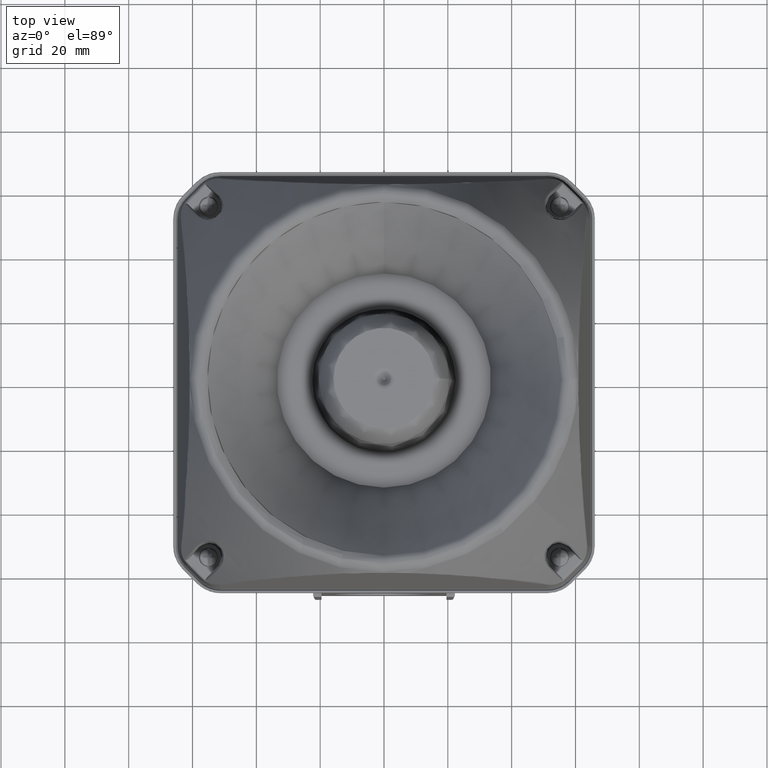
[diagram: clean part render]
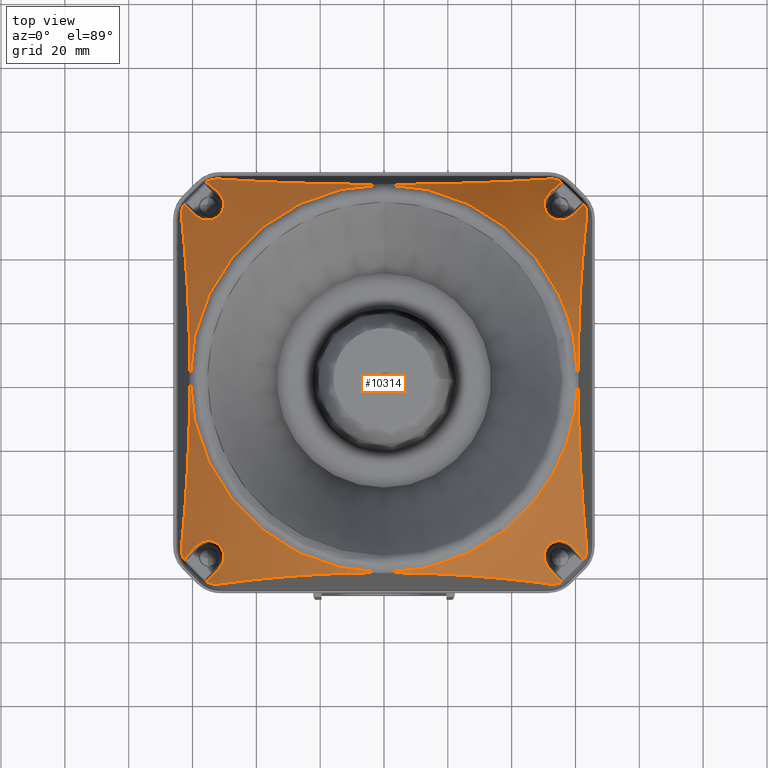
[diagram: same view with one face highlighted and labeled with its STEP entity id]
A machine part, top view. The second image highlights one B-rep face of the part: STEP entity #10314.
In plain terms, the highlighted face is a freeform B-spline surface patch.
Its self-contained STEP definition (entity closure, byte-faithful):
#986=(
BOUNDED_SURFACE()
B_SPLINE_SURFACE(3,3,((#53728,#53729,#53730,#53731,#53732,#53733,#53734),
(#53735,#53736,#53737,#53738,#53739,#53740,#53741),(#53742,#53743,#53744,
#53745,#53746,#53747,#53748),(#53749,#53750,#53751,#53752,#53753,#53754,
#53755)),.UNSPECIFIED.,.F.,.T.,.F.)
B_SPLINE_SURFACE_WITH_KNOTS((4,4),(1,3,3,3,1),(0.,1.),(-0.5,0.,0.5,1.,1.5),
 .UNSPECIFIED.)
GEOMETRIC_REPRESENTATION_ITEM()
RATIONAL_B_SPLINE_SURFACE(((1.,0.333333333333333,0.333333333333333,1.,0.333333333333333,
0.333333333333333,1.),(0.999040047145868,0.333013349048623,0.333013349048623,
0.999040047145868,0.333013349048623,0.333013349048623,0.999040047145868),
(0.999040047145868,0.333013349048623,0.333013349048623,0.999040047145868,
0.333013349048623,0.333013349048623,0.999040047145868),(1.,0.333333333333333,
0.333333333333333,1.,0.333333333333333,0.333333333333333,1.)))
REPRESENTATION_ITEM('')
SURFACE()
);
#9570=B_SPLINE_CURVE_WITH_KNOTS('',3,(#53406,#53407,#53408,#53409,#53410,
#53411,#53412,#53413,#53414,#53415,#53416,#53417,#53418,#53419,#53420,#53421,
#53422,#53423),.UNSPECIFIED.,.F.,.F.,(4,2,2,2,2,2,2,2,4),(0.,0.25,0.375,
0.4375,0.5,0.5625,0.624999999999999,0.75,1.),.UNSPECIFIED.);
#9571=B_SPLINE_CURVE_WITH_KNOTS('',3,(#53426,#53427,#53428,#53429,#53430,
#53431,#53432,#53433,#53434,#53435),.UNSPECIFIED.,.F.,.F.,(4,3,3,4),(0.,
0.0937948226373862,0.468983089944983,1.),.UNSPECIFIED.);
#9572=B_SPLINE_CURVE_WITH_KNOTS('',3,(#53437,#53438,#53439,#53440,#53441,
#53442),.UNSPECIFIED.,.F.,.F.,(4,2,4),(0.,0.5,1.),.UNSPECIFIED.);
#9573=B_SPLINE_CURVE_WITH_KNOTS('',3,(#53444,#53445,#53446,#53447,#53448,
#53449,#53450,#53451,#53452,#53453,#53454,#53455,#53456,#53457,#53458,#53459,
#53460,#53461,#53462,#53463,#53464,#53465,#53466,#53467),.UNSPECIFIED.,.F.,
 .F.,(4,2,2,2,2,2,2,2,2,2,2,4),(0.,0.125,0.25,0.375,0.4375,0.5,0.5625,0.625000000000001,
0.687500000000001,0.750000000000001,0.875,1.),.UNSPECIFIED.);
#9574=B_SPLINE_CURVE_WITH_KNOTS('',3,(#53469,#53470,#53471,#53472,#53473,
#53474),.UNSPECIFIED.,.F.,.F.,(4,2,4),(0.,0.5,1.),.UNSPECIFIED.);
#9575=B_SPLINE_CURVE_WITH_KNOTS('',3,(#53476,#53477,#53478,#53479,#53480,
#53481,#53482,#53483,#53484,#53485),.UNSPECIFIED.,.F.,.F.,(4,3,3,4),(0.,
0.0935979217296559,0.468786165316077,1.),.UNSPECIFIED.);
#9576=B_SPLINE_CURVE_WITH_KNOTS('',3,(#53487,#53488,#53489,#53490,#53491,
#53492,#53493,#53494,#53495,#53496,#53497,#53498,#53499,#53500,#53501,#53502,
#53503,#53504),.UNSPECIFIED.,.F.,.F.,(4,2,2,2,2,2,2,2,4),(0.,0.25,0.375,
0.4375,0.5,0.5625,0.625,0.750000000000001,1.),.UNSPECIFIED.);
#9577=B_SPLINE_CURVE_WITH_KNOTS('',3,(#53506,#53507,#53508,#53509,#53510,
#53511,#53512,#53513,#53514,#53515),.UNSPECIFIED.,.F.,.F.,(4,3,3,4),(0.,
0.0937948226373845,0.468983089944973,1.),.UNSPECIFIED.);
#9578=B_SPLINE_CURVE_WITH_KNOTS('',3,(#53517,#53518,#53519,#53520,#53521,
#53522),.UNSPECIFIED.,.F.,.F.,(4,2,4),(0.,0.5,1.),.UNSPECIFIED.);
#9579=B_SPLINE_CURVE_WITH_KNOTS('',3,(#53524,#53525,#53526,#53527,#53528,
#53529,#53530,#53531,#53532,#53533,#53534,#53535,#53536,#53537,#53538,#53539,
#53540,#53541,#53542,#53543,#53544,#53545,#53546,#53547),.UNSPECIFIED.,.F.,
 .F.,(4,2,2,2,2,2,2,2,2,2,2,4),(0.,0.125,0.25,0.375,0.4375,0.5,0.5625,0.625000000000001,
0.687500000000001,0.750000000000001,0.875,1.),.UNSPECIFIED.);
#9580=B_SPLINE_CURVE_WITH_KNOTS('',3,(#53549,#53550,#53551,#53552,#53553,
#53554),.UNSPECIFIED.,.F.,.F.,(4,2,4),(0.,0.5,1.),.UNSPECIFIED.);
#9581=B_SPLINE_CURVE_WITH_KNOTS('',3,(#53556,#53557,#53558,#53559,#53560,
#53561,#53562,#53563,#53564,#53565),.UNSPECIFIED.,.F.,.F.,(4,3,3,4),(0.,
0.0935979217296737,0.46878616531609,1.),.UNSPECIFIED.);
#9582=B_SPLINE_CURVE_WITH_KNOTS('',3,(#53567,#53568,#53569,#53570,#53571,
#53572,#53573,#53574,#53575,#53576,#53577,#53578,#53579,#53580,#53581,#53582,
#53583,#53584),.UNSPECIFIED.,.F.,.F.,(4,2,2,2,2,2,2,2,4),(0.,0.25,0.375,
0.4375,0.5,0.562499999999999,0.624999999999999,0.749999999999999,1.),.UNSPECIFIED.);
#9583=B_SPLINE_CURVE_WITH_KNOTS('',3,(#53586,#53587,#53588,#53589,#53590,
#53591,#53592,#53593,#53594,#53595),.UNSPECIFIED.,.F.,.F.,(4,3,3,4),(0.,
0.0937948226373629,0.468983089944866,1.),.UNSPECIFIED.);
#9584=B_SPLINE_CURVE_WITH_KNOTS('',3,(#53597,#53598,#53599,#53600,#53601,
#53602),.UNSPECIFIED.,.F.,.F.,(4,2,4),(0.,0.5,1.),.UNSPECIFIED.);
#9585=B_SPLINE_CURVE_WITH_KNOTS('',3,(#53604,#53605,#53606,#53607,#53608,
#53609,#53610,#53611,#53612,#53613,#53614,#53615,#53616,#53617,#53618,#53619,
#53620,#53621,#53622,#53623,#53624,#53625,#53626,#53627),.UNSPECIFIED.,.F.,
 .F.,(4,2,2,2,2,2,2,2,2,2,2,4),(0.,0.125,0.25,0.375,0.4375,0.5,0.5625,0.625,
0.6875,0.75,0.875,1.),.UNSPECIFIED.);
#9586=B_SPLINE_CURVE_WITH_KNOTS('',3,(#53629,#53630,#53631,#53632,#53633,
#53634),.UNSPECIFIED.,.F.,.F.,(4,2,4),(0.,0.5,1.),.UNSPECIFIED.);
#9587=B_SPLINE_CURVE_WITH_KNOTS('',3,(#53636,#53637,#53638,#53639,#53640,
#53641,#53642,#53643,#53644,#53645),.UNSPECIFIED.,.F.,.F.,(4,3,3,4),(0.,
0.0935979217296787,0.468786165316099,1.),.UNSPECIFIED.);
#9588=B_SPLINE_CURVE_WITH_KNOTS('',3,(#53647,#53648,#53649,#53650,#53651,
#53652,#53653,#53654,#53655,#53656,#53657,#53658,#53659,#53660,#53661,#53662,
#53663,#53664),.UNSPECIFIED.,.F.,.F.,(4,2,2,2,2,2,2,2,4),(0.,0.25,0.375,
0.4375,0.5,0.5625,0.625,0.75,1.),.UNSPECIFIED.);
#9589=B_SPLINE_CURVE_WITH_KNOTS('',3,(#53666,#53667,#53668,#53669,#53670,
#53671,#53672,#53673,#53674,#53675),.UNSPECIFIED.,.F.,.F.,(4,3,3,4),(0.,
0.0937948226373314,0.468983089944707,1.),.UNSPECIFIED.);
#9590=B_SPLINE_CURVE_WITH_KNOTS('',3,(#53677,#53678,#53679,#53680,#53681,
#53682),.UNSPECIFIED.,.F.,.F.,(4,2,4),(0.,0.5,1.),.UNSPECIFIED.);
#9591=B_SPLINE_CURVE_WITH_KNOTS('',3,(#53684,#53685,#53686,#53687,#53688,
#53689,#53690,#53691,#53692,#53693,#53694,#53695,#53696,#53697,#53698,#53699,
#53700,#53701,#53702,#53703,#53704,#53705,#53706,#53707),.UNSPECIFIED.,.F.,
 .F.,(4,2,2,2,2,2,2,2,2,2,2,4),(0.,0.125,0.25,0.375,0.4375,0.5,0.5625,0.625,
0.6875,0.75,0.875,1.),.UNSPECIFIED.);
#9592=B_SPLINE_CURVE_WITH_KNOTS('',3,(#53709,#53710,#53711,#53712,#53713,
#53714),.UNSPECIFIED.,.F.,.F.,(4,2,4),(0.,0.5,1.),.UNSPECIFIED.);
#9593=B_SPLINE_CURVE_WITH_KNOTS('',3,(#53716,#53717,#53718,#53719,#53720,
#53721,#53722,#53723,#53724,#53725),.UNSPECIFIED.,.F.,.F.,(4,3,3,4),(0.,
0.0935979217296654,0.468786165316085,1.),.UNSPECIFIED.);
#10314=ADVANCED_FACE('',(#12779,#12780),#986,.T.);
#12779=FACE_BOUND('',#13398,.T.);
#12780=FACE_BOUND('',#13399,.T.);
#13398=EDGE_LOOP('',(#16317,#16318,#16319,#16320,#16321,#16322,#16323,#16324,
#16325,#16326,#16327,#16328,#16329,#16330,#16331,#16332,#16333,#16334,#16335,
#16336,#16337,#16338,#16339,#16340));
#13399=EDGE_LOOP('',(#16341));
#16317=ORIENTED_EDGE('',*,*,#29918,.T.);
#16318=ORIENTED_EDGE('',*,*,#29919,.T.);
#16319=ORIENTED_EDGE('',*,*,#29920,.T.);
#16320=ORIENTED_EDGE('',*,*,#29921,.T.);
#16321=ORIENTED_EDGE('',*,*,#29922,.T.);
#16322=ORIENTED_EDGE('',*,*,#29923,.T.);
#16323=ORIENTED_EDGE('',*,*,#29924,.T.);
#16324=ORIENTED_EDGE('',*,*,#29925,.T.);
#16325=ORIENTED_EDGE('',*,*,#29926,.T.);
#16326=ORIENTED_EDGE('',*,*,#29927,.T.);
#16327=ORIENTED_EDGE('',*,*,#29928,.T.);
#16328=ORIENTED_EDGE('',*,*,#29929,.T.);
#16329=ORIENTED_EDGE('',*,*,#29930,.T.);
#16330=ORIENTED_EDGE('',*,*,#29931,.T.);
#16331=ORIENTED_EDGE('',*,*,#29932,.T.);
#16332=ORIENTED_EDGE('',*,*,#29933,.T.);
#16333=ORIENTED_EDGE('',*,*,#29934,.T.);
#16334=ORIENTED_EDGE('',*,*,#29935,.T.);
#16335=ORIENTED_EDGE('',*,*,#29936,.T.);
#16336=ORIENTED_EDGE('',*,*,#29937,.T.);
#16337=ORIENTED_EDGE('',*,*,#29938,.T.);
#16338=ORIENTED_EDGE('',*,*,#29939,.T.);
#16339=ORIENTED_EDGE('',*,*,#29940,.T.);
#16340=ORIENTED_EDGE('',*,*,#29941,.T.);
#16341=ORIENTED_EDGE('',*,*,#29942,.T.);
#26579=VERTEX_POINT('',#53424);
#26580=VERTEX_POINT('',#53425);
#26581=VERTEX_POINT('',#53436);
#26582=VERTEX_POINT('',#53443);
#26583=VERTEX_POINT('',#53468);
#26584=VERTEX_POINT('',#53475);
#26585=VERTEX_POINT('',#53486);
#26586=VERTEX_POINT('',#53505);
#26587=VERTEX_POINT('',#53516);
#26588=VERTEX_POINT('',#53523);
#26589=VERTEX_POINT('',#53548);
#26590=VERTEX_POINT('',#53555);
#26591=VERTEX_POINT('',#53566);
#26592=VERTEX_POINT('',#53585);
#26593=VERTEX_POINT('',#53596);
#26594=VERTEX_POINT('',#53603);
#26595=VERTEX_POINT('',#53628);
#26596=VERTEX_POINT('',#53635);
#26597=VERTEX_POINT('',#53646);
#26598=VERTEX_POINT('',#53665);
#26599=VERTEX_POINT('',#53676);
#26600=VERTEX_POINT('',#53683);
#26601=VERTEX_POINT('',#53708);
#26602=VERTEX_POINT('',#53715);
#26603=VERTEX_POINT('',#53727);
#29918=EDGE_CURVE('',#26579,#26580,#9570,.T.);
#29919=EDGE_CURVE('',#26580,#26581,#9571,.T.);
#29920=EDGE_CURVE('',#26581,#26582,#9572,.T.);
#29921=EDGE_CURVE('',#26582,#26583,#9573,.T.);
#29922=EDGE_CURVE('',#26583,#26584,#9574,.T.);
#29923=EDGE_CURVE('',#26584,#26585,#9575,.T.);
#29924=EDGE_CURVE('',#26585,#26586,#9576,.T.);
#29925=EDGE_CURVE('',#26586,#26587,#9577,.T.);
#29926=EDGE_CURVE('',#26587,#26588,#9578,.T.);
#29927=EDGE_CURVE('',#26588,#26589,#9579,.T.);
#29928=EDGE_CURVE('',#26589,#26590,#9580,.T.);
#29929=EDGE_CURVE('',#26590,#26591,#9581,.T.);
#29930=EDGE_CURVE('',#26591,#26592,#9582,.T.);
#29931=EDGE_CURVE('',#26592,#26593,#9583,.T.);
#29932=EDGE_CURVE('',#26593,#26594,#9584,.T.);
#29933=EDGE_CURVE('',#26594,#26595,#9585,.T.);
#29934=EDGE_CURVE('',#26595,#26596,#9586,.T.);
#29935=EDGE_CURVE('',#26596,#26597,#9587,.T.);
#29936=EDGE_CURVE('',#26597,#26598,#9588,.T.);
#29937=EDGE_CURVE('',#26598,#26599,#9589,.T.);
#29938=EDGE_CURVE('',#26599,#26600,#9590,.T.);
#29939=EDGE_CURVE('',#26600,#26601,#9591,.T.);
#29940=EDGE_CURVE('',#26601,#26602,#9592,.T.);
#29941=EDGE_CURVE('',#26602,#26579,#9593,.T.);
#29942=EDGE_CURVE('',#26603,#26603,#35038,.T.);
#35038=CIRCLE('',#36883,60.7872811423238);
#36883=AXIS2_PLACEMENT_3D('',#53726,#41662,#41663);
#41662=DIRECTION('',(0.,0.,-1.));
#41663=DIRECTION('',(-1.,0.,0.));
#53406=CARTESIAN_POINT('',(-51.8598166026616,59.6362230362637,30.4477325415229));
#53407=CARTESIAN_POINT('',(-51.1233194355033,58.9688003562038,33.195692393238));
#53408=CARTESIAN_POINT('',(-50.5746817287237,58.1224835722201,35.9155416997056));
#53409=CARTESIAN_POINT('',(-50.1899132704351,56.4440370194349,39.9325641265616));
#53410=CARTESIAN_POINT('',(-50.1319816254803,55.8158512199351,41.2674225440742));
#53411=CARTESIAN_POINT('',(-50.3124767207491,54.6768885965607,43.1318926711117));
#53412=CARTESIAN_POINT('',(-50.4176910177762,54.2590259689215,43.7400322432011));
#53413=CARTESIAN_POINT('',(-50.8342079209187,53.3123383306019,44.7713233747222));
#53414=CARTESIAN_POINT('',(-51.185050524613,52.7267741184758,45.2279396673675));
#53415=CARTESIAN_POINT('',(-52.2357956600106,51.6782844849892,45.2235518900912));
#53416=CARTESIAN_POINT('',(-52.8154693518082,51.3320463663558,44.7694373831999));
#53417=CARTESIAN_POINT('',(-53.7690512507599,50.9140750504921,43.7275649900362));
#53418=CARTESIAN_POINT('',(-54.183989533095,50.8109051257919,43.1211371401784));
#53419=CARTESIAN_POINT('',(-55.3193355905919,50.6323325301341,41.259960948293));
#53420=CARTESIAN_POINT('',(-55.9488720175457,50.6908374253516,39.9213530421177));
#53421=CARTESIAN_POINT('',(-57.6175151858069,51.0739119994428,35.9267099904798));
#53422=CARTESIAN_POINT('',(-58.4695911708559,51.6241920950155,33.192436395236));
#53423=CARTESIAN_POINT('',(-59.1362230362658,52.3598166026639,30.4477325415142));
#53424=CARTESIAN_POINT('',(-51.8598166026616,59.6362230362637,30.4477325415229));
#53425=CARTESIAN_POINT('',(-59.1362230362658,52.3598166026639,30.4477325415142));
#53426=CARTESIAN_POINT('',(-59.1362230362658,52.3598166026639,30.4477325415142));
#53427=CARTESIAN_POINT('',(-59.2504223838348,52.4858349393022,29.9775429126819));
#53428=CARTESIAN_POINT('',(-59.3641998098758,52.611434903089,29.5071382528479));
#53429=CARTESIAN_POINT('',(-59.477554864394,52.7366160336343,29.0365208760053));
#53430=CARTESIAN_POINT('',(-59.9309805067986,53.2373465460554,27.1540288483797));
#53431=CARTESIAN_POINT('',(-60.3776551702937,53.731383478083,25.2681032219073));
#53432=CARTESIAN_POINT('',(-60.8175502475444,54.218697314542,23.3788918416908));
#53433=CARTESIAN_POINT('',(-61.4401409878077,54.908400604876,20.7050598927771));
#53434=CARTESIAN_POINT('',(-62.0491782492393,55.5846665416678,18.0245296607692));
#53435=CARTESIAN_POINT('',(-62.6445823376969,56.2474117118879,15.3377192915044));
#53436=CARTESIAN_POINT('',(-62.6445823376969,56.2474117118879,15.3377192915044));
#53437=CARTESIAN_POINT('',(-62.6445823376969,56.247411711888,15.3377192915045));
#53438=CARTESIAN_POINT('',(-63.151159069882,55.376858564372,15.9455677100452));
#53439=CARTESIAN_POINT('',(-63.331039295305,54.6681508640018,16.9196794905434));
#53440=CARTESIAN_POINT('',(-63.530757131928,53.4099089967789,18.8894723872006));
#53441=CARTESIAN_POINT('',(-63.5277293882498,52.8658117926154,19.9224347482217));
#53442=CARTESIAN_POINT('',(-63.4746178257298,52.3624368880349,20.9784307920716));
#53443=CARTESIAN_POINT('',(-63.4746178257298,52.3624368880348,20.9784307920715));
#53444=CARTESIAN_POINT('',(-63.4746178257298,52.3624368880348,20.9784307920715));
#53445=CARTESIAN_POINT('',(-63.1808559280112,49.5782528004773,26.8191816023666));
#53446=CARTESIAN_POINT('',(-62.8952107240408,46.5880826716597,32.5320938961054));
#53447=CARTESIAN_POINT('',(-62.3456099352066,40.0406603327652,43.6059450158064));
#53448=CARTESIAN_POINT('',(-62.0813706628361,36.4935891429481,48.9732081781426));
#53449=CARTESIAN_POINT('',(-61.5868267765352,28.4471690633068,59.1165566772486));
#53450=CARTESIAN_POINT('',(-61.3566476675544,23.9821571210512,63.8946645694361));
#53451=CARTESIAN_POINT('',(-61.0825943918053,16.116552318078,69.6407934801585));
#53452=CARTESIAN_POINT('',(-61.0034081183593,13.2739191881204,71.3123945442221));
#53453=CARTESIAN_POINT('',(-60.8909594181047,7.23965799598736,73.6935785259409));
#53454=CARTESIAN_POINT('',(-60.8578081720887,3.98275113415723,74.3996483034372));
#53455=CARTESIAN_POINT('',(-60.8548383825083,-2.50337399080979,74.4628139275564));
#53456=CARTESIAN_POINT('',(-60.8849968563179,-5.77378144153808,73.8203023547014));
#53457=CARTESIAN_POINT('',(-60.9934798512311,-11.86756649377,71.5222337379704));
#53458=CARTESIAN_POINT('',(-61.071101580917,-14.7288835742083,69.8828220464999));
#53459=CARTESIAN_POINT('',(-61.2510745427846,-20.0022801801929,66.1073211928154));
#53460=CARTESIAN_POINT('',(-61.3550735070165,-22.4676950558397,63.9366232223831));
#53461=CARTESIAN_POINT('',(-61.5769847937224,-27.0580355149534,59.3337720536523));
#53462=CARTESIAN_POINT('',(-61.69535377962,-29.1959285123816,56.8917257762561));
#53463=CARTESIAN_POINT('',(-62.0665793384746,-35.2840546117709,49.2745494275222));
#53464=CARTESIAN_POINT('',(-62.3349360646183,-38.9052955834637,43.8218390174607));
#53465=CARTESIAN_POINT('',(-62.8902445063319,-45.5368985530273,32.6313534251871));
#53466=CARTESIAN_POINT('',(-63.1789187091159,-48.5598924411017,26.8576985540299));
#53467=CARTESIAN_POINT('',(-63.4746178257266,-51.3624368880382,20.9784307920723));
#53468=CARTESIAN_POINT('',(-63.4746178257266,-51.3624368880382,20.9784307920723));
#53469=CARTESIAN_POINT('',(-63.4746178257266,-51.3624368880382,20.9784307920723));
#53470=CARTESIAN_POINT('',(-63.5277605917374,-51.8661075296194,19.9218143416427));
#53471=CARTESIAN_POINT('',(-63.5307431706382,-52.4104894058882,18.8884051096544));
#53472=CARTESIAN_POINT('',(-63.3308100939972,-53.6691018034379,16.9183496165223));
#53473=CARTESIAN_POINT('',(-63.1503690094672,-54.3782162848025,15.9446197056477));
#53474=CARTESIAN_POINT('',(-62.644582337696,-55.2474117118871,15.3377192915082));
#53475=CARTESIAN_POINT('',(-62.6445823376959,-55.2474117118872,15.3377192915084));
#53476=CARTESIAN_POINT('',(-62.6445823376959,-55.2474117118872,15.3377192915084));
#53477=CARTESIAN_POINT('',(-62.5396328296982,-55.1305922595341,15.8113126574322));
#53478=CARTESIAN_POINT('',(-62.4342601466895,-55.013353165453,16.2847091513415));
#53479=CARTESIAN_POINT('',(-62.3284647206773,-54.8956948846744,16.7579064851498));
#53480=CARTESIAN_POINT('',(-61.904387713621,-54.4240660681103,18.6547002940367));
#53481=CARTESIAN_POINT('',(-61.4735113084906,-53.9456942637123,20.5483241768899));
#53482=CARTESIAN_POINT('',(-61.035863637324,-53.4606089037608,22.4386306365525));
#53483=CARTESIAN_POINT('',(-60.41622397998,-52.7738050064118,25.1150046335129));
#53484=CARTESIAN_POINT('',(-59.7829833708681,-52.0735129880223,27.7848451595486));
#53485=CARTESIAN_POINT('',(-59.1362230362637,-51.3598166026616,30.447732541523));
#53486=CARTESIAN_POINT('',(-59.1362230362637,-51.3598166026616,30.447732541523));
#53487=CARTESIAN_POINT('',(-59.1362230362637,-51.3598166026616,30.447732541523));
#53488=CARTESIAN_POINT('',(-58.4688003562038,-50.6233194355033,33.1956923932382));
#53489=CARTESIAN_POINT('',(-57.62248357222,-50.0746817287237,35.9155416997058));
#53490=CARTESIAN_POINT('',(-55.9440370194347,-49.689913270435,39.9325641265619));
#53491=CARTESIAN_POINT('',(-55.3158512199351,-49.6319816254803,41.2674225440746));
#53492=CARTESIAN_POINT('',(-54.1768885965607,-49.8124767207491,43.1318926711122));
#53493=CARTESIAN_POINT('',(-53.7590259689213,-49.9176910177763,43.7400322432015));
#53494=CARTESIAN_POINT('',(-52.8123383306016,-50.3342079209188,44.7713233747225));
#53495=CARTESIAN_POINT('',(-52.2267741184755,-50.6850505246132,45.2279396673676));
#53496=CARTESIAN_POINT('',(-51.178284484989,-51.7357956600109,45.223551890091));
#53497=CARTESIAN_POINT('',(-50.8320463663557,-52.3154693518084,44.7694373831997));
#53498=CARTESIAN_POINT('',(-50.4140750504921,-53.2690512507601,43.727564990036));
#53499=CARTESIAN_POINT('',(-50.3109051257918,-53.6839895330953,43.1211371401783));
#53500=CARTESIAN_POINT('',(-50.1323325301341,-54.8193355905921,41.2599609482929));
#53501=CARTESIAN_POINT('',(-50.1908374253516,-55.4488720175456,39.9213530421175));
#53502=CARTESIAN_POINT('',(-50.5739119994427,-57.1175151858068,35.9267099904798));
#53503=CARTESIAN_POINT('',(-51.1241920950155,-57.9695911708559,33.192436395236));
#53504=CARTESIAN_POINT('',(-51.8598166026639,-58.6362230362658,30.4477325415143));
#53505=CARTESIAN_POINT('',(-51.8598166026639,-58.6362230362658,30.4477325415143));
#53506=CARTESIAN_POINT('',(-51.8598166026639,-58.6362230362658,30.4477325415143));
#53507=CARTESIAN_POINT('',(-51.9858349393023,-58.7504223838348,29.977542912682));
#53508=CARTESIAN_POINT('',(-52.1114349030889,-58.8641998098757,29.507138252848));
#53509=CARTESIAN_POINT('',(-52.2366160336342,-58.977554864394,29.0365208760054));
#53510=CARTESIAN_POINT('',(-52.7373465460553,-59.4309805067985,27.1540288483798));
#53511=CARTESIAN_POINT('',(-53.231383478083,-59.8776551702938,25.2681032219074));
#53512=CARTESIAN_POINT('',(-53.718697314542,-60.3175502475445,23.3788918416909));
#53513=CARTESIAN_POINT('',(-54.4084006048761,-60.9401409878078,20.7050598927771));
#53514=CARTESIAN_POINT('',(-55.0846665416678,-61.5491782492393,18.024529660769));
#53515=CARTESIAN_POINT('',(-55.7474117118879,-62.1445823376969,15.3377192915042));
#53516=CARTESIAN_POINT('',(-55.7474117118879,-62.1445823376969,15.3377192915042));
#53517=CARTESIAN_POINT('',(-55.747411711888,-62.1445823376969,15.3377192915044));
#53518=CARTESIAN_POINT('',(-54.876858564372,-62.651159069882,15.9455677100451));
#53519=CARTESIAN_POINT('',(-54.1681508640019,-62.831039295305,16.9196794905436));
#53520=CARTESIAN_POINT('',(-52.9099089967789,-63.030757131928,18.8894723872008));
#53521=CARTESIAN_POINT('',(-52.3658117926154,-63.0277293882498,19.9224347482217));
#53522=CARTESIAN_POINT('',(-51.8624368880349,-62.9746178257298,20.9784307920716));
#53523=CARTESIAN_POINT('',(-51.8624368880348,-62.9746178257298,20.9784307920716));
#53524=CARTESIAN_POINT('',(-51.8624368880348,-62.9746178257298,20.9784307920716));
#53525=CARTESIAN_POINT('',(-49.0782528004773,-62.6808559280111,26.8191816023667));
#53526=CARTESIAN_POINT('',(-46.0880826716597,-62.3952107240408,32.5320938961056));
#53527=CARTESIAN_POINT('',(-39.5406603327651,-61.8456099352066,43.6059450158066));
#53528=CARTESIAN_POINT('',(-35.9935891429478,-61.5813706628361,48.9732081781427));
#53529=CARTESIAN_POINT('',(-27.9471690633064,-61.0868267765351,59.1165566772487));
#53530=CARTESIAN_POINT('',(-23.4821571210509,-60.8566476675543,63.8946645694364));
#53531=CARTESIAN_POINT('',(-15.6165523180775,-60.5825943918053,69.6407934801587));
#53532=CARTESIAN_POINT('',(-12.7739191881202,-60.5034081183592,71.3123945442227));
#53533=CARTESIAN_POINT('',(-6.73965799598707,-60.3909594181046,73.6935785259415));
#53534=CARTESIAN_POINT('',(-3.48275113415679,-60.3578081720887,74.3996483034372));
#53535=CARTESIAN_POINT('',(3.00337399081029,-60.3548383825083,74.4628139275563));
#53536=CARTESIAN_POINT('',(6.27378144153856,-60.3849968563178,73.8203023547014));
#53537=CARTESIAN_POINT('',(12.3675664937704,-60.493479851231,71.5222337379703));
#53538=CARTESIAN_POINT('',(15.2288835742088,-60.571101580917,69.8828220464999));
#53539=CARTESIAN_POINT('',(20.5022801801933,-60.7510745427846,66.1073211928154));
#53540=CARTESIAN_POINT('',(22.9676950558398,-60.8550735070164,63.9366232223827));
#53541=CARTESIAN_POINT('',(27.5580355149535,-61.0769847937224,59.3337720536519));
#53542=CARTESIAN_POINT('',(29.6959285123819,-61.19535377962,56.8917257762559));
#53543=CARTESIAN_POINT('',(35.7840546117711,-61.5665793384745,49.274549427522));
#53544=CARTESIAN_POINT('',(39.4052955834639,-61.8349360646183,43.8218390174606));
#53545=CARTESIAN_POINT('',(46.0368985530275,-62.3902445063319,32.6313534251871));
#53546=CARTESIAN_POINT('',(49.0598924411021,-62.6789187091159,26.8576985540299));
#53547=CARTESIAN_POINT('',(51.8624368880385,-62.9746178257266,20.9784307920724));
#53548=CARTESIAN_POINT('',(51.8624368880383,-62.9746178257266,20.9784307920723));
#53549=CARTESIAN_POINT('',(51.8624368880383,-62.9746178257266,20.9784307920723));
#53550=CARTESIAN_POINT('',(52.3661075296196,-63.0277605917373,19.9218143416427));
#53551=CARTESIAN_POINT('',(52.9104894058882,-63.0307431706381,18.8884051096544));
#53552=CARTESIAN_POINT('',(54.169101803438,-62.8308100939972,16.9183496165223));
#53553=CARTESIAN_POINT('',(54.8782162848023,-62.6503690094673,15.9446197056475));
#53554=CARTESIAN_POINT('',(55.7474117118869,-62.1445823376961,15.3377192915079));
#53555=CARTESIAN_POINT('',(55.747411711887,-62.144582337696,15.3377192915081));
#53556=CARTESIAN_POINT('',(55.747411711887,-62.144582337696,15.3377192915081));
#53557=CARTESIAN_POINT('',(55.6305922595338,-62.0396328296983,15.811312657432));
#53558=CARTESIAN_POINT('',(55.513353165453,-61.9342601466895,16.2847091513414));
#53559=CARTESIAN_POINT('',(55.3956948846743,-61.8284647206773,16.7579064851498));
#53560=CARTESIAN_POINT('',(54.9240660681103,-61.404387713621,18.6547002940367));
#53561=CARTESIAN_POINT('',(54.4456942637123,-60.9735113084906,20.5483241768899));
#53562=CARTESIAN_POINT('',(53.9606089037608,-60.535863637324,22.4386306365525));
#53563=CARTESIAN_POINT('',(53.2738050064118,-59.9162239799801,25.1150046335129));
#53564=CARTESIAN_POINT('',(52.5735129880223,-59.2829833708682,27.7848451595486));
#53565=CARTESIAN_POINT('',(51.8598166026616,-58.6362230362637,30.4477325415229));
#53566=CARTESIAN_POINT('',(51.8598166026616,-58.6362230362637,30.4477325415229));
#53567=CARTESIAN_POINT('',(51.8598166026616,-58.6362230362637,30.4477325415229));
#53568=CARTESIAN_POINT('',(51.1233194355035,-57.968800356204,33.1956923932373));
#53569=CARTESIAN_POINT('',(50.574681728724,-57.1224835722205,35.9155416997043));
#53570=CARTESIAN_POINT('',(50.1899132704352,-55.4440370194359,39.9325641265593));
#53571=CARTESIAN_POINT('',(50.1319816254804,-54.8158512199365,41.2674225440717));
#53572=CARTESIAN_POINT('',(50.3124767207486,-53.6768885965628,43.131892671109));
#53573=CARTESIAN_POINT('',(50.4176910177755,-53.2590259689237,43.7400322431983));
#53574=CARTESIAN_POINT('',(50.8342079209171,-52.3123383306048,44.7713233747198));
#53575=CARTESIAN_POINT('',(51.1850505246101,-51.7267741184795,45.2279396673657));
#53576=CARTESIAN_POINT('',(52.2357956600071,-50.6782844849918,45.223551890093));
#53577=CARTESIAN_POINT('',(52.8154693518048,-50.3320463663577,44.7694373832028));
#53578=CARTESIAN_POINT('',(53.7690512507567,-49.9140750504931,43.7275649900404));
#53579=CARTESIAN_POINT('',(54.1839895330921,-49.8109051257926,43.121137140183));
#53580=CARTESIAN_POINT('',(55.3193355905892,-49.632332530134,41.2599609482984));
#53581=CARTESIAN_POINT('',(55.948872017543,-49.6908374253513,39.9213530421236));
#53582=CARTESIAN_POINT('',(57.6175151858045,-50.0739119994416,35.926709990487));
#53583=CARTESIAN_POINT('',(58.4695911708534,-50.6241920950137,33.192436395244));
#53584=CARTESIAN_POINT('',(59.1362230362636,-51.3598166026615,30.447732541523));
#53585=CARTESIAN_POINT('',(59.1362230362637,-51.3598166026615,30.447732541523));
#53586=CARTESIAN_POINT('',(59.1362230362637,-51.3598166026615,30.447732541523));
#53587=CARTESIAN_POINT('',(59.2504223838326,-51.4858349392999,29.9775429126907));
#53588=CARTESIAN_POINT('',(59.3641998098736,-51.6114349030866,29.5071382528567));
#53589=CARTESIAN_POINT('',(59.4775548643918,-51.7366160336319,29.0365208760141));
#53590=CARTESIAN_POINT('',(59.9309805067964,-52.237346546053,27.1540288483885));
#53591=CARTESIAN_POINT('',(60.3776551702916,-52.7313834780807,25.2681032219161));
#53592=CARTESIAN_POINT('',(60.8175502475424,-53.2186973145397,23.3788918416996));
#53593=CARTESIAN_POINT('',(61.440140987806,-53.9084006048741,20.7050598927847));
#53594=CARTESIAN_POINT('',(62.0491782492431,-54.5846665416603,18.0245296607752));
#53595=CARTESIAN_POINT('',(62.6445823377011,-55.2474117118807,15.3377192915092));
#53596=CARTESIAN_POINT('',(62.6445823377011,-55.2474117118807,15.3377192915092));
#53597=CARTESIAN_POINT('',(62.644582337701,-55.2474117118808,15.3377192915094));
#53598=CARTESIAN_POINT('',(63.1511590698837,-54.3768585643664,15.9455677100521));
#53599=CARTESIAN_POINT('',(63.3310392953058,-53.6681508639981,16.9196794905487));
#53600=CARTESIAN_POINT('',(63.5307571319279,-52.4099089967774,18.8894723872035));
#53601=CARTESIAN_POINT('',(63.5277293882497,-51.8658117926146,19.9224347482231));
#53602=CARTESIAN_POINT('',(63.4746178257298,-51.3624368880348,20.9784307920716));
#53603=CARTESIAN_POINT('',(63.4746178257298,-51.3624368880348,20.9784307920716));
#53604=CARTESIAN_POINT('',(63.4746178257298,-51.3624368880348,20.9784307920716));
#53605=CARTESIAN_POINT('',(63.1808559280111,-48.5782528004773,26.8191816023667));
#53606=CARTESIAN_POINT('',(62.8952107240408,-45.5880826716595,32.5320938961055));
#53607=CARTESIAN_POINT('',(62.3456099352066,-39.040660332765,43.6059450158065));
#53608=CARTESIAN_POINT('',(62.0813706628361,-35.493589142948,48.9732081781428));
#53609=CARTESIAN_POINT('',(61.5868267765351,-27.4471690633066,59.1165566772488));
#53610=CARTESIAN_POINT('',(61.3566476675544,-22.9821571210509,63.8946645694363));
#53611=CARTESIAN_POINT('',(61.0825943918053,-15.1165523180776,69.6407934801587));
#53612=CARTESIAN_POINT('',(61.0034081183592,-12.2739191881202,71.3123945442224));
#53613=CARTESIAN_POINT('',(60.8909594181047,-6.23965799598709,73.6935785259412));
#53614=CARTESIAN_POINT('',(60.8578081720887,-2.98275113415689,74.399648303437));
#53615=CARTESIAN_POINT('',(60.8548383825083,3.50337399081017,74.4628139275562));
#53616=CARTESIAN_POINT('',(60.8849968563178,6.77378144153852,73.8203023547018));
#53617=CARTESIAN_POINT('',(60.993479851231,12.8675664937704,71.5222337379707));
#53618=CARTESIAN_POINT('',(61.071101580917,15.7288835742085,69.8828220464997));
#53619=CARTESIAN_POINT('',(61.2510745427846,21.0022801801931,66.1073211928152));
#53620=CARTESIAN_POINT('',(61.3550735070164,23.4676950558399,63.9366232223829));
#53621=CARTESIAN_POINT('',(61.5769847937223,28.0580355149536,59.3337720536521));
#53622=CARTESIAN_POINT('',(61.69535377962,30.1959285123818,56.8917257762559));
#53623=CARTESIAN_POINT('',(62.0665793384746,36.2840546117711,49.2745494275221));
#53624=CARTESIAN_POINT('',(62.3349360646183,39.9052955834638,43.8218390174606));
#53625=CARTESIAN_POINT('',(62.8902445063319,46.5368985530274,32.631353425187));
#53626=CARTESIAN_POINT('',(63.1789187091159,49.5598924411019,26.8576985540299));
#53627=CARTESIAN_POINT('',(63.4746178257266,52.3624368880384,20.9784307920723));
#53628=CARTESIAN_POINT('',(63.4746178257266,52.3624368880384,20.9784307920723));
#53629=CARTESIAN_POINT('',(63.4746178257266,52.3624368880384,20.9784307920723));
#53630=CARTESIAN_POINT('',(63.5277605917373,52.8661075296196,19.9218143416427));
#53631=CARTESIAN_POINT('',(63.5307431706381,53.4104894058882,18.8884051096543));
#53632=CARTESIAN_POINT('',(63.3308100939972,54.669101803438,16.9183496165222));
#53633=CARTESIAN_POINT('',(63.1503690094672,55.3782162848025,15.9446197056475));
#53634=CARTESIAN_POINT('',(62.644582337696,56.2474117118871,15.3377192915081));
#53635=CARTESIAN_POINT('',(62.644582337696,56.2474117118871,15.337719291508));
#53636=CARTESIAN_POINT('',(62.644582337696,56.2474117118871,15.337719291508));
#53637=CARTESIAN_POINT('',(62.5396328296983,56.1305922595339,15.811312657432));
#53638=CARTESIAN_POINT('',(62.4342601466895,56.0133531654531,16.2847091513414));
#53639=CARTESIAN_POINT('',(62.3284647206773,55.8956948846744,16.7579064851498));
#53640=CARTESIAN_POINT('',(61.904387713621,55.4240660681104,18.6547002940367));
#53641=CARTESIAN_POINT('',(61.4735113084906,54.9456942637123,20.5483241768899));
#53642=CARTESIAN_POINT('',(61.035863637324,54.4606089037609,22.4386306365525));
#53643=CARTESIAN_POINT('',(60.41622397998,53.7738050064119,25.1150046335128));
#53644=CARTESIAN_POINT('',(59.7829833708682,53.0735129880224,27.7848451595484));
#53645=CARTESIAN_POINT('',(59.1362230362638,52.3598166026616,30.4477325415227));
#53646=CARTESIAN_POINT('',(59.1362230362638,52.3598166026616,30.4477325415227));
#53647=CARTESIAN_POINT('',(59.1362230362638,52.3598166026616,30.4477325415227));
#53648=CARTESIAN_POINT('',(58.4688003562041,51.6233194355036,33.1956923932371));
#53649=CARTESIAN_POINT('',(57.6224835722206,51.0746817287241,35.9155416997041));
#53650=CARTESIAN_POINT('',(55.944037019436,50.6899132704352,39.9325641265592));
#53651=CARTESIAN_POINT('',(55.3158512199365,50.6319816254804,41.2674225440714));
#53652=CARTESIAN_POINT('',(54.1768885965628,50.8124767207486,43.1318926711087));
#53653=CARTESIAN_POINT('',(53.7590259689237,50.9176910177755,43.740032243198));
#53654=CARTESIAN_POINT('',(52.8123383306048,51.3342079209171,44.7713233747195));
#53655=CARTESIAN_POINT('',(52.2267741184796,51.68505052461,45.2279396673657));
#53656=CARTESIAN_POINT('',(51.1782844849919,52.735795660007,45.2235518900931));
#53657=CARTESIAN_POINT('',(50.8320463663577,53.3154693518046,44.7694373832028));
#53658=CARTESIAN_POINT('',(50.4140750504932,54.2690512507566,43.7275649900405));
#53659=CARTESIAN_POINT('',(50.3109051257926,54.683989533092,43.121137140183));
#53660=CARTESIAN_POINT('',(50.132332530134,55.8193355905891,41.2599609482985));
#53661=CARTESIAN_POINT('',(50.1908374253513,56.448872017543,39.9213530421236));
#53662=CARTESIAN_POINT('',(50.5739119994416,58.1175151858045,35.9267099904869));
#53663=CARTESIAN_POINT('',(51.1241920950138,58.9695911708536,33.192436395244));
#53664=CARTESIAN_POINT('',(51.8598166026616,59.6362230362638,30.4477325415229));
#53665=CARTESIAN_POINT('',(51.8598166026615,59.6362230362637,30.4477325415228));
#53666=CARTESIAN_POINT('',(51.8598166026615,59.6362230362637,30.4477325415228));
#53667=CARTESIAN_POINT('',(51.9858349392999,59.7504223838327,29.9775429126906));
#53668=CARTESIAN_POINT('',(52.1114349030866,59.8641998098737,29.5071382528566));
#53669=CARTESIAN_POINT('',(52.2366160336319,59.9775548643919,29.036520876014));
#53670=CARTESIAN_POINT('',(52.7373465460531,60.4309805067965,27.1540288483884));
#53671=CARTESIAN_POINT('',(53.2313834780808,60.8776551702918,25.268103221916));
#53672=CARTESIAN_POINT('',(53.7186973145398,61.3175502475425,23.3788918416995));
#53673=CARTESIAN_POINT('',(54.4084006048746,61.9401409878065,20.7050598927829));
#53674=CARTESIAN_POINT('',(55.084666541667,62.5491782492387,18.0245296607719));
#53675=CARTESIAN_POINT('',(55.7474117118878,63.144582337697,15.3377192915042));
#53676=CARTESIAN_POINT('',(55.7474117118878,63.144582337697,15.3377192915042));
#53677=CARTESIAN_POINT('',(55.7474117118879,63.1445823376969,15.3377192915046));
#53678=CARTESIAN_POINT('',(54.8768585643719,63.651159069882,15.9455677100453));
#53679=CARTESIAN_POINT('',(54.168150864002,63.8310392953049,16.9196794905435));
#53680=CARTESIAN_POINT('',(52.909908996779,64.030757131928,18.8894723872007));
#53681=CARTESIAN_POINT('',(52.3658117926154,64.0277293882498,19.9224347482217));
#53682=CARTESIAN_POINT('',(51.8624368880349,63.9746178257298,20.9784307920716));
#53683=CARTESIAN_POINT('',(51.8624368880348,63.9746178257298,20.9784307920715));
#53684=CARTESIAN_POINT('',(51.8624368880348,63.9746178257298,20.9784307920715));
#53685=CARTESIAN_POINT('',(49.0782528004773,63.6808559280112,26.8191816023667));
#53686=CARTESIAN_POINT('',(46.0880826716597,63.3952107240408,32.5320938961055));
#53687=CARTESIAN_POINT('',(39.5406603327651,62.8456099352066,43.6059450158066));
#53688=CARTESIAN_POINT('',(35.993589142948,62.5813706628361,48.9732081781428));
#53689=CARTESIAN_POINT('',(27.9471690633065,62.0868267765352,59.1165566772488));
#53690=CARTESIAN_POINT('',(23.4821571210508,61.8566476675544,63.8946645694362));
#53691=CARTESIAN_POINT('',(15.6165523180775,61.5825943918053,69.6407934801586));
#53692=CARTESIAN_POINT('',(12.7739191881201,61.5034081183593,71.3123945442224));
#53693=CARTESIAN_POINT('',(6.73965799598701,61.3909594181047,73.6935785259411));
#53694=CARTESIAN_POINT('',(3.48275113415686,61.3578081720887,74.3996483034372));
#53695=CARTESIAN_POINT('',(-3.00337399081017,61.3548383825083,74.4628139275563));
#53696=CARTESIAN_POINT('',(-6.27378144153861,61.3849968563178,73.8203023547018));
#53697=CARTESIAN_POINT('',(-12.3675664937705,61.493479851231,71.5222337379707));
#53698=CARTESIAN_POINT('',(-15.2288835742088,61.571101580917,69.8828220465));
#53699=CARTESIAN_POINT('',(-20.5022801801933,61.7510745427846,66.1073211928154));
#53700=CARTESIAN_POINT('',(-22.9676950558399,61.8550735070165,63.9366232223828));
#53701=CARTESIAN_POINT('',(-27.5580355149536,62.0769847937224,59.3337720536521));
#53702=CARTESIAN_POINT('',(-29.6959285123817,62.19535377962,56.8917257762559));
#53703=CARTESIAN_POINT('',(-35.784054611771,62.5665793384746,49.274549427522));
#53704=CARTESIAN_POINT('',(-39.4052955834639,62.8349360646183,43.8218390174607));
#53705=CARTESIAN_POINT('',(-46.0368985530275,63.3902445063319,32.6313534251871));
#53706=CARTESIAN_POINT('',(-49.0598924411019,63.6789187091159,26.8576985540299));
#53707=CARTESIAN_POINT('',(-51.8624368880384,63.9746178257266,20.9784307920723));
#53708=CARTESIAN_POINT('',(-51.8624368880382,63.9746178257266,20.9784307920723));
#53709=CARTESIAN_POINT('',(-51.8624368880382,63.9746178257266,20.9784307920723));
#53710=CARTESIAN_POINT('',(-52.3661075296195,64.0277605917374,19.9218143416427));
#53711=CARTESIAN_POINT('',(-52.9104894058881,64.0307431706382,18.8884051096543));
#53712=CARTESIAN_POINT('',(-54.1691018034378,63.8308100939973,16.9183496165223));
#53713=CARTESIAN_POINT('',(-54.8782162848024,63.6503690094672,15.9446197056478));
#53714=CARTESIAN_POINT('',(-55.747411711887,63.144582337696,15.3377192915084));
#53715=CARTESIAN_POINT('',(-55.747411711887,63.1445823376961,15.3377192915082));
#53716=CARTESIAN_POINT('',(-55.747411711887,63.1445823376961,15.3377192915082));
#53717=CARTESIAN_POINT('',(-55.6305922595338,63.0396328296984,15.8113126574321));
#53718=CARTESIAN_POINT('',(-55.513353165453,62.9342601466895,16.2847091513415));
#53719=CARTESIAN_POINT('',(-55.3956948846744,62.8284647206773,16.7579064851498));
#53720=CARTESIAN_POINT('',(-54.9240660681104,62.404387713621,18.6547002940367));
#53721=CARTESIAN_POINT('',(-54.4456942637123,61.9735113084906,20.5483241768899));
#53722=CARTESIAN_POINT('',(-53.9606089037608,61.535863637324,22.4386306365525));
#53723=CARTESIAN_POINT('',(-53.2738050064118,60.9162239799801,25.1150046335129));
#53724=CARTESIAN_POINT('',(-52.5735129880224,60.2829833708682,27.7848451595486));
#53725=CARTESIAN_POINT('',(-51.8598166026616,59.6362230362637,30.4477325415229));
#53726=CARTESIAN_POINT('',(-1.45994327738208E-014,0.50000000000001,74.5851547829061));
#53727=CARTESIAN_POINT('',(-60.7872811423238,0.50000000000001,74.5851547829061));
#53728=CARTESIAN_POINT('',(60.6172839268997,0.50000000000001,74.9610901649883));
#53729=CARTESIAN_POINT('',(60.6172839268997,121.734567853799,74.9610901649883));
#53730=CARTESIAN_POINT('',(-60.6172839268997,121.734567853799,74.9610901649883));
#53731=CARTESIAN_POINT('',(-60.6172839268997,0.50000000000001,74.9610901649883));
#53732=CARTESIAN_POINT('',(-60.6172839268997,-120.734567853799,74.9610901649883));
#53733=CARTESIAN_POINT('',(60.6172839268997,-120.734567853799,74.9610901649883));
#53734=CARTESIAN_POINT('',(60.6172839268997,0.50000000000001,74.9610901649883));
#53735=CARTESIAN_POINT('',(69.4738344306683,0.50000000000001,55.3934529423392));
#53736=CARTESIAN_POINT('',(69.4738344306683,139.447668861337,55.3934529423392));
#53737=CARTESIAN_POINT('',(-69.4738344306683,139.447668861337,55.3934529423392));
#53738=CARTESIAN_POINT('',(-69.4738344306683,0.50000000000001,55.3934529423392));
#53739=CARTESIAN_POINT('',(-69.4738344306683,-138.447668861337,55.3934529423392));
#53740=CARTESIAN_POINT('',(69.4738344306683,-138.447668861337,55.3934529423392));
#53741=CARTESIAN_POINT('',(69.4738344306683,0.50000000000001,55.3934529423392));
#53742=CARTESIAN_POINT('',(77.2679263858808,0.50000000000001,35.3788821526195));
#53743=CARTESIAN_POINT('',(77.2679263858808,155.035852771762,35.3788821526195));
#53744=CARTESIAN_POINT('',(-77.2679263858808,155.035852771762,35.3788821526195));
#53745=CARTESIAN_POINT('',(-77.2679263858808,0.50000000000001,35.3788821526195));
#53746=CARTESIAN_POINT('',(-77.2679263858808,-154.035852771762,35.3788821526195));
#53747=CARTESIAN_POINT('',(77.2679263858808,-154.035852771762,35.3788821526195));
#53748=CARTESIAN_POINT('',(77.2679263858808,0.50000000000001,35.3788821526195));
#53749=CARTESIAN_POINT('',(83.977113910084,0.50000000000001,14.9750169288908));
#53750=CARTESIAN_POINT('',(83.977113910084,168.454227820168,14.9750169288908));
#53751=CARTESIAN_POINT('',(-83.977113910084,168.454227820168,14.9750169288908));
#53752=CARTESIAN_POINT('',(-83.977113910084,0.50000000000001,14.9750169288908));
#53753=CARTESIAN_POINT('',(-83.977113910084,-167.454227820168,14.9750169288908));
#53754=CARTESIAN_POINT('',(83.977113910084,-167.454227820168,14.9750169288908));
#53755=CARTESIAN_POINT('',(83.977113910084,0.50000000000001,14.9750169288908));